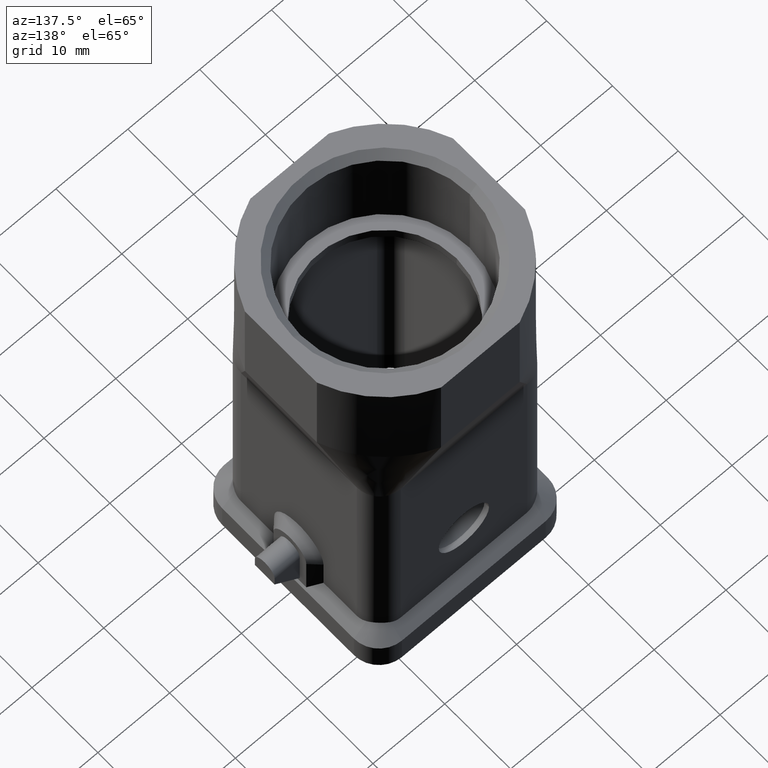
[diagram: clean part render]
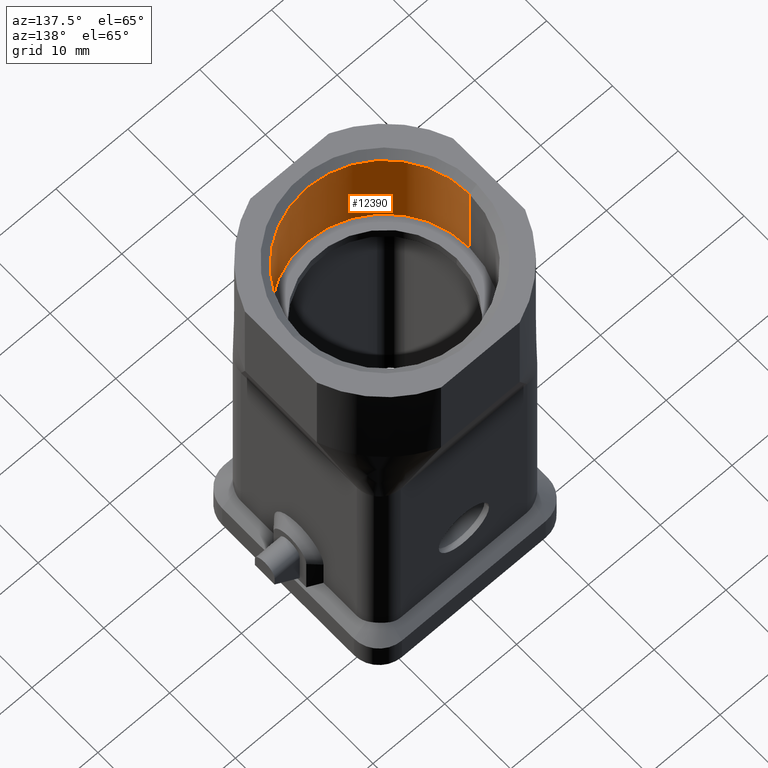
[diagram: same view with one face highlighted and labeled with its STEP entity id]
A machine part, auxiliary view. The second image highlights one B-rep face of the part: STEP entity #12390.
In plain terms, the highlighted cylindrical surface (partial cylindrical patch) has radius 11.8 mm, axis along (0, 0, -1).
Its self-contained STEP definition (entity closure, byte-faithful):
#11980=CARTESIAN_POINT('',(42.465603,40.359071,57.));
#11990=DIRECTION('',(0.,0.,-1.));
#12000=DIRECTION('',(-1.,0.,0.));
#12010=AXIS2_PLACEMENT_3D('',#11980,#11990,#12000);
#12020=CYLINDRICAL_SURFACE('',#12010,11.8);
#12030=CARTESIAN_POINT('',(54.265603,40.359071,57.));
#12040=DIRECTION('',(0.,0.,-1.));
#12050=VECTOR('',#12040,1.);
#12060=LINE('',#12030,#12050);
#12070=CARTESIAN_POINT('',(54.265603,40.359071,56.));
#12080=VERTEX_POINT('',#12070);
#12090=CARTESIAN_POINT('',(54.265603,40.359071,43.));
#12100=VERTEX_POINT('',#12090);
#12110=EDGE_CURVE('',#12080,#12100,#12060,.T.);
#12120=ORIENTED_EDGE('',*,*,#12110,.T.);
#12130=CARTESIAN_POINT('',(42.465603,40.359071,56.));
#12140=DIRECTION('',(0.,0.,1.));
#12150=DIRECTION('',(1.,0.,-0.));
#12160=AXIS2_PLACEMENT_3D('',#12130,#12140,#12150);
#12170=CIRCLE('',#12160,11.8);
#12180=CARTESIAN_POINT('',(30.665603,40.359071,56.));
#12190=VERTEX_POINT('',#12180);
#12200=EDGE_CURVE('',#12190,#12080,#12170,.T.);
#12210=ORIENTED_EDGE('',*,*,#12200,.T.);
#12220=CARTESIAN_POINT('',(30.665603,40.359071,57.));
#12230=DIRECTION('',(0.,0.,-1.));
#12240=VECTOR('',#12230,1.);
#12250=LINE('',#12220,#12240);
#12260=CARTESIAN_POINT('',(30.665603,40.359071,43.));
#12270=VERTEX_POINT('',#12260);
#12280=EDGE_CURVE('',#12190,#12270,#12250,.T.);
#12290=ORIENTED_EDGE('',*,*,#12280,.F.);
#12300=CARTESIAN_POINT('',(42.465603,40.359071,43.));
#12310=DIRECTION('',(0.,0.,-1.));
#12320=DIRECTION('',(-1.,0.,0.));
#12330=AXIS2_PLACEMENT_3D('',#12300,#12310,#12320);
#12340=CIRCLE('',#12330,11.8);
#12350=EDGE_CURVE('',#12100,#12270,#12340,.T.);
#12360=ORIENTED_EDGE('',*,*,#12350,.T.);
#12370=EDGE_LOOP('',(#12360,#12290,#12210,#12120));
#12380=FACE_OUTER_BOUND('',#12370,.T.);
#12390=ADVANCED_FACE('',(#12380),#12020,.F.);